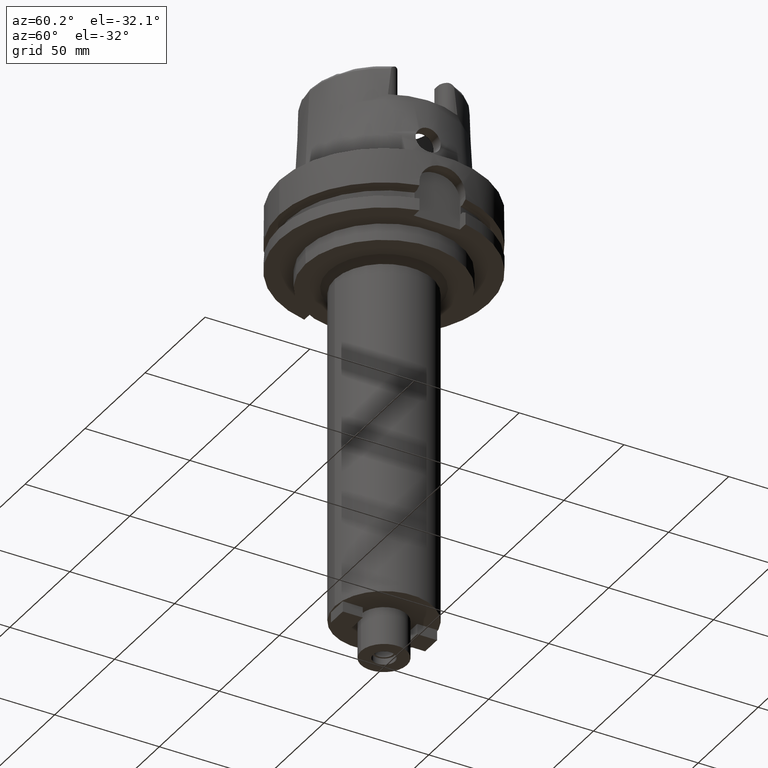
[diagram: clean part render]
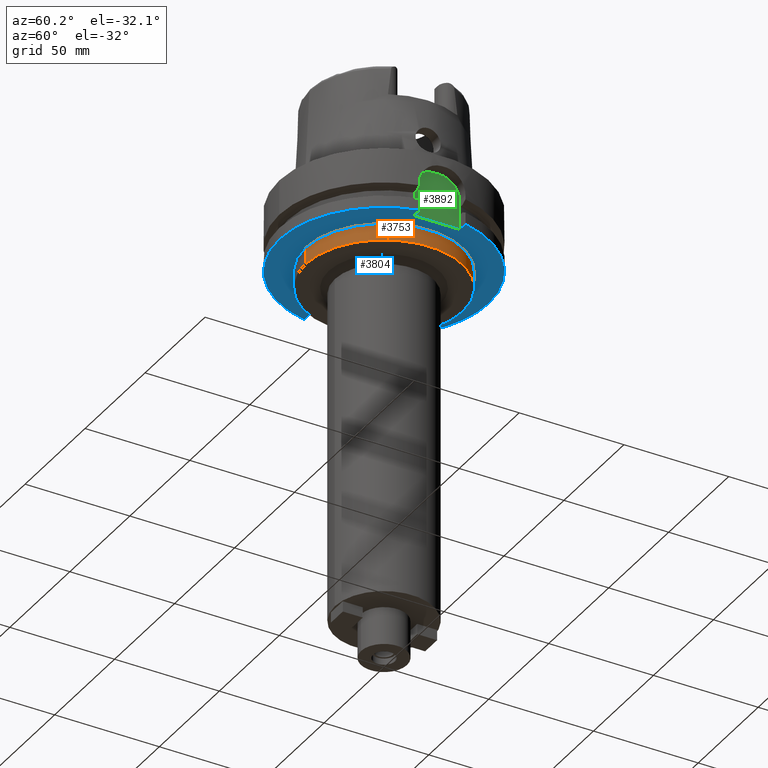
[diagram: same view with three faces highlighted in distinct colors, each labeled with its STEP entity id]
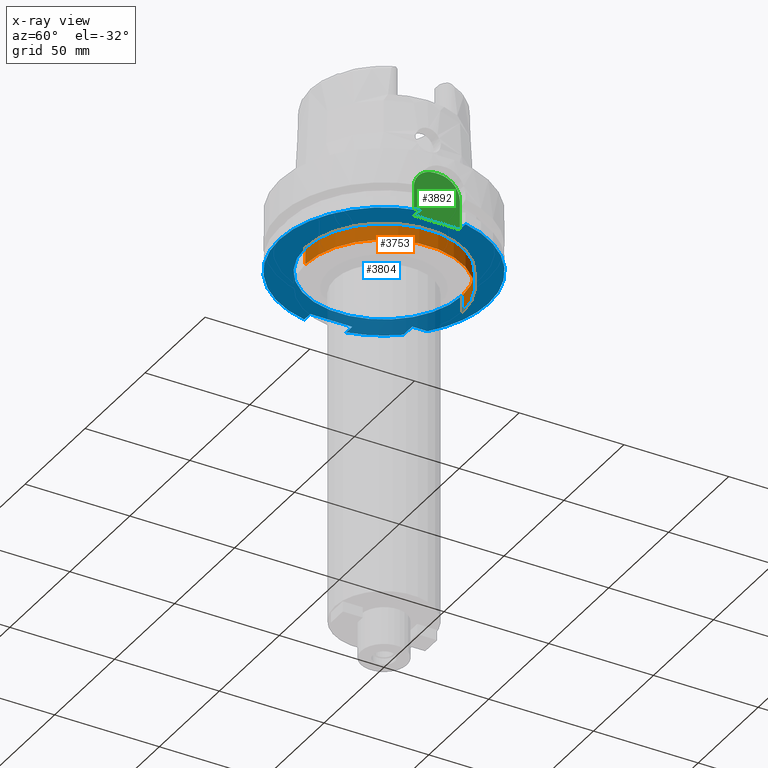
[diagram: x-ray of the same camera — body ghosted, the three highlighted faces saturated]
A machine part, auxiliary view with three faces highlighted in distinct colors.
The next image is the same camera in x-ray (body ghosted, the three faces saturated) — at least one of them is partly hidden behind the body in this view.
Their STEP definitions:

[orange] entity #3753 — the highlighted cylindrical surface (partial cylindrical patch) has radius 37.5 mm, axis along (0, 0, 1).
#1233=CARTESIAN_POINT('',(0.E0,0.E0,-3.7E1));
#1234=DIRECTION('',(0.E0,0.E0,1.E0));
#1235=DIRECTION('',(0.E0,-1.E0,0.E0));
#1236=AXIS2_PLACEMENT_3D('',#1233,#1234,#1235);
#1265=DIRECTION('',(0.E0,0.E0,-1.E0));
#1266=VECTOR('',#1265,8.E0);
#1267=CARTESIAN_POINT('',(0.E0,3.75E1,-2.9E1));
#1268=LINE('',#1267,#1266);
#1272=DIRECTION('',(0.E0,0.E0,-1.E0));
#1273=VECTOR('',#1272,8.E0);
#1274=CARTESIAN_POINT('',(0.E0,-3.75E1,-2.9E1));
#1275=LINE('',#1274,#1273);
#1348=CARTESIAN_POINT('',(0.E0,0.E0,-2.9E1));
#1349=DIRECTION('',(0.E0,0.E0,-1.E0));
#1350=DIRECTION('',(0.E0,1.E0,0.E0));
#1351=AXIS2_PLACEMENT_3D('',#1348,#1349,#1350);
#2636=CARTESIAN_POINT('',(0.E0,-3.75E1,-3.7E1));
#2637=CARTESIAN_POINT('',(0.E0,3.75E1,-3.7E1));
#2638=VERTEX_POINT('',#2636);
#2639=VERTEX_POINT('',#2637);
#2640=CARTESIAN_POINT('',(0.E0,3.75E1,-2.9E1));
#2641=VERTEX_POINT('',#2640);
#2642=CARTESIAN_POINT('',(0.E0,-3.75E1,-2.9E1));
#2643=VERTEX_POINT('',#2642);
#3739=CARTESIAN_POINT('',(0.E0,0.E0,-2.314E2));
#3740=DIRECTION('',(0.E0,0.E0,1.E0));
#3741=DIRECTION('',(0.E0,1.E0,0.E0));
#3742=AXIS2_PLACEMENT_3D('',#3739,#3740,#3741);
#3743=CYLINDRICAL_SURFACE('',#3742,3.75E1);
#3745=ORIENTED_EDGE('',*,*,#3744,.T.);
#3746=ORIENTED_EDGE('',*,*,#3728,.F.);
#3748=ORIENTED_EDGE('',*,*,#3747,.F.);
#3750=ORIENTED_EDGE('',*,*,#3749,.F.);
#3751=EDGE_LOOP('',(#3745,#3746,#3748,#3750));
#3752=FACE_OUTER_BOUND('',#3751,.F.);
#1237=CIRCLE('',#1236,3.75E1);
#1352=CIRCLE('',#1351,3.75E1);
#3728=EDGE_CURVE('',#2638,#2639,#1237,.T.);
#3744=EDGE_CURVE('',#2641,#2639,#1268,.T.);
#3747=EDGE_CURVE('',#2643,#2638,#1275,.T.);
#3749=EDGE_CURVE('',#2641,#2643,#1352,.T.);
#3753=ADVANCED_FACE('',(#3752),#3743,.T.);

[blue] entity #3804 — the highlighted planar face has unit normal (0, 0, 1).
#1279=DIRECTION('',(-1.E0,-4.798503851106E-14,0.E0));
#1280=VECTOR('',#1279,7.329756630709E0);
#1281=CARTESIAN_POINT('',(-3.15E1,3.15E1,-2.9E1));
#1282=LINE('',#1281,#1280);
#1286=CARTESIAN_POINT('',(0.E0,0.E0,-2.9E1));
#1287=DIRECTION('',(0.E0,0.E0,1.E0));
#1288=DIRECTION('',(-7.765951326142E-1,6.3E-1,0.E0));
#1289=AXIS2_PLACEMENT_3D('',#1286,#1287,#1288);
#1294=DIRECTION('',(-1.E0,-4.627973610177E-14,0.E0));
#1295=VECTOR('',#1294,4.989794855662E0);
#1296=CARTESIAN_POINT('',(-4.4E1,-1.E1,-2.9E1));
#1297=LINE('',#1296,#1295);
#1301=CARTESIAN_POINT('',(0.E0,0.E0,-2.9E1));
#1302=DIRECTION('',(0.E0,0.E0,1.E0));
#1303=DIRECTION('',(-9.797958971133E-1,-2.E-1,0.E0));
#1304=AXIS2_PLACEMENT_3D('',#1301,#1302,#1303);
#1309=CARTESIAN_POINT('',(0.E0,0.E0,-2.9E1));
#1310=DIRECTION('',(0.E0,0.E0,1.E0));
#1311=DIRECTION('',(0.E0,-1.E0,0.E0));
#1312=AXIS2_PLACEMENT_3D('',#1309,#1310,#1311);
#1317=DIRECTION('',(1.E0,-1.785659532940E-14,0.E0));
#1318=VECTOR('',#1317,4.774993593029E0);
#1319=CARTESIAN_POINT('',(4.4E1,1.1E1,-2.9E1));
#1320=LINE('',#1319,#1318);
#1324=CARTESIAN_POINT('',(0.E0,0.E0,-2.9E1));
#1325=DIRECTION('',(0.E0,0.E0,1.E0));
#1326=DIRECTION('',(9.754998718606E-1,2.2E-1,0.E0));
#1327=AXIS2_PLACEMENT_3D('',#1324,#1325,#1326);
#1332=CARTESIAN_POINT('',(0.E0,0.E0,-2.9E1));
#1333=DIRECTION('',(0.E0,0.E0,1.E0));
#1334=DIRECTION('',(0.E0,1.E0,0.E0));
#1335=AXIS2_PLACEMENT_3D('',#1332,#1333,#1334);
#1340=CARTESIAN_POINT('',(0.E0,0.E0,-2.9E1));
#1341=DIRECTION('',(0.E0,0.E0,-1.E0));
#1342=DIRECTION('',(0.E0,-1.E0,0.E0));
#1343=AXIS2_PLACEMENT_3D('',#1340,#1341,#1342);
#1348=CARTESIAN_POINT('',(0.E0,0.E0,-2.9E1));
#1349=DIRECTION('',(0.E0,0.E0,-1.E0));
#1350=DIRECTION('',(0.E0,1.E0,0.E0));
#1351=AXIS2_PLACEMENT_3D('',#1348,#1349,#1350);
#1356=DIRECTION('',(4.798503851106E-14,1.E0,0.E0));
#1357=VECTOR('',#1356,7.329756630709E0);
#1358=CARTESIAN_POINT('',(-3.15E1,3.15E1,-2.9E1));
#1359=LINE('',#1358,#1357);
#1409=DIRECTION('',(0.E0,-1.E0,0.E0));
#1410=VECTOR('',#1409,2.2E1);
#1411=CARTESIAN_POINT('',(4.4E1,1.1E1,-2.9E1));
#1412=LINE('',#1411,#1410);
#1453=DIRECTION('',(1.E0,1.711257052401E-14,0.E0));
#1454=VECTOR('',#1453,4.774993593029E0);
#1455=CARTESIAN_POINT('',(4.4E1,-1.1E1,-2.9E1));
#1456=LINE('',#1455,#1454);
#1495=DIRECTION('',(0.E0,1.E0,0.E0));
#1496=VECTOR('',#1495,2.E1);
#1497=CARTESIAN_POINT('',(-4.4E1,-1.E1,-2.9E1));
#1498=LINE('',#1497,#1496);
#1518=DIRECTION('',(-1.E0,4.627973610177E-14,0.E0));
#1519=VECTOR('',#1518,4.989794855662E0);
#1520=CARTESIAN_POINT('',(-4.4E1,1.E1,-2.9E1));
#1521=LINE('',#1520,#1519);
#2640=CARTESIAN_POINT('',(0.E0,3.75E1,-2.9E1));
#2641=VERTEX_POINT('',#2640);
#2642=CARTESIAN_POINT('',(0.E0,-3.75E1,-2.9E1));
#2643=VERTEX_POINT('',#2642);
#2644=CARTESIAN_POINT('',(-3.15E1,3.15E1,-2.9E1));
#2645=CARTESIAN_POINT('',(-3.15E1,3.882975663071E1,-2.9E1));
#2646=VERTEX_POINT('',#2644);
#2647=VERTEX_POINT('',#2645);
#2648=CARTESIAN_POINT('',(-3.882975663071E1,3.15E1,-2.9E1));
#2649=VERTEX_POINT('',#2648);
#2650=CARTESIAN_POINT('',(-4.898979485566E1,1.E1,-2.9E1));
#2651=VERTEX_POINT('',#2650);
#2652=CARTESIAN_POINT('',(-4.4E1,1.E1,-2.9E1));
#2653=VERTEX_POINT('',#2652);
#2654=CARTESIAN_POINT('',(-4.4E1,-1.E1,-2.9E1));
#2655=VERTEX_POINT('',#2654);
#2656=CARTESIAN_POINT('',(-4.898979485566E1,-1.E1,-2.9E1));
#2657=VERTEX_POINT('',#2656);
#2658=CARTESIAN_POINT('',(-6.821749291191E-14,-5.E1,-2.9E1));
#2659=CARTESIAN_POINT('',(4.877499359303E1,-1.1E1,-2.9E1));
#2660=VERTEX_POINT('',#2658);
#2661=VERTEX_POINT('',#2659);
#2662=CARTESIAN_POINT('',(4.4E1,-1.1E1,-2.9E1));
#2663=VERTEX_POINT('',#2662);
#2664=CARTESIAN_POINT('',(4.4E1,1.1E1,-2.9E1));
#2665=VERTEX_POINT('',#2664);
#2666=CARTESIAN_POINT('',(4.877499359303E1,1.1E1,-2.9E1));
#2667=VERTEX_POINT('',#2666);
#2668=CARTESIAN_POINT('',(-6.019535474874E-14,5.E1,-2.9E1));
#2669=VERTEX_POINT('',#2668);
#3767=CARTESIAN_POINT('',(0.E0,0.E0,-2.9E1));
#3768=DIRECTION('',(0.E0,0.E0,1.E0));
#3769=DIRECTION('',(0.E0,1.E0,0.E0));
#3770=AXIS2_PLACEMENT_3D('',#3767,#3768,#3769);
#3771=PLANE('',#3770);
#3773=ORIENTED_EDGE('',*,*,#3772,.F.);
#3775=ORIENTED_EDGE('',*,*,#3774,.T.);
#3777=ORIENTED_EDGE('',*,*,#3776,.T.);
#3779=ORIENTED_EDGE('',*,*,#3778,.F.);
#3781=ORIENTED_EDGE('',*,*,#3780,.F.);
#3783=ORIENTED_EDGE('',*,*,#3782,.T.);
#3785=ORIENTED_EDGE('',*,*,#3784,.T.);
#3787=ORIENTED_EDGE('',*,*,#3786,.T.);
#3789=ORIENTED_EDGE('',*,*,#3788,.F.);
#3791=ORIENTED_EDGE('',*,*,#3790,.F.);
#3793=ORIENTED_EDGE('',*,*,#3792,.T.);
#3795=ORIENTED_EDGE('',*,*,#3794,.T.);
#3797=ORIENTED_EDGE('',*,*,#3796,.T.);
#3798=EDGE_LOOP('',(#3773,#3775,#3777,#3779,#3781,#3783,#3785,#3787,#3789,#3791,
#3793,#3795,#3797));
#3799=FACE_OUTER_BOUND('',#3798,.F.);
#3800=ORIENTED_EDGE('',*,*,#3760,.T.);
#3801=ORIENTED_EDGE('',*,*,#3749,.T.);
#3802=EDGE_LOOP('',(#3800,#3801));
#3803=FACE_BOUND('',#3802,.F.);
#1290=CIRCLE('',#1289,5.E1);
#1305=CIRCLE('',#1304,5.E1);
#1313=CIRCLE('',#1312,5.E1);
#1328=CIRCLE('',#1327,5.E1);
#1336=CIRCLE('',#1335,5.E1);
#1344=CIRCLE('',#1343,3.75E1);
#1352=CIRCLE('',#1351,3.75E1);
#3749=EDGE_CURVE('',#2641,#2643,#1352,.T.);
#3760=EDGE_CURVE('',#2643,#2641,#1344,.T.);
#3772=EDGE_CURVE('',#2646,#2647,#1359,.T.);
#3774=EDGE_CURVE('',#2646,#2649,#1282,.T.);
#3776=EDGE_CURVE('',#2649,#2651,#1290,.T.);
#3778=EDGE_CURVE('',#2653,#2651,#1521,.T.);
#3780=EDGE_CURVE('',#2655,#2653,#1498,.T.);
#3782=EDGE_CURVE('',#2655,#2657,#1297,.T.);
#3784=EDGE_CURVE('',#2657,#2660,#1305,.T.);
#3786=EDGE_CURVE('',#2660,#2661,#1313,.T.);
#3788=EDGE_CURVE('',#2663,#2661,#1456,.T.);
#3790=EDGE_CURVE('',#2665,#2663,#1412,.T.);
#3792=EDGE_CURVE('',#2665,#2667,#1320,.T.);
#3794=EDGE_CURVE('',#2667,#2669,#1328,.T.);
#3796=EDGE_CURVE('',#2669,#2647,#1336,.T.);
#3804=ADVANCED_FACE('',(#3799,#3803),#3771,.F.);

[green] entity #3892 — the highlighted planar face has unit normal (1, 0, 0).
#1409=DIRECTION('',(0.E0,-1.E0,0.E0));
#1410=VECTOR('',#1409,2.2E1);
#1411=CARTESIAN_POINT('',(4.4E1,1.1E1,-2.9E1));
#1412=LINE('',#1411,#1410);
#1416=DIRECTION('',(0.E0,0.E0,1.E0));
#1417=VECTOR('',#1416,1.4E1);
#1418=CARTESIAN_POINT('',(4.4E1,-1.1E1,-2.9E1));
#1419=LINE('',#1418,#1417);
#1423=CARTESIAN_POINT('',(4.4E1,-1.E0,-1.5E1));
#1424=DIRECTION('',(-1.E0,0.E0,0.E0));
#1425=DIRECTION('',(0.E0,-1.E0,0.E0));
#1426=AXIS2_PLACEMENT_3D('',#1423,#1424,#1425);
#1431=DIRECTION('',(0.E0,1.E0,0.E0));
#1432=VECTOR('',#1431,2.E0);
#1433=CARTESIAN_POINT('',(4.4E1,-1.E0,-5.E0));
#1434=LINE('',#1433,#1432);
#1438=CARTESIAN_POINT('',(4.4E1,1.E0,-1.5E1));
#1439=DIRECTION('',(-1.E0,0.E0,0.E0));
#1440=DIRECTION('',(0.E0,0.E0,1.E0));
#1441=AXIS2_PLACEMENT_3D('',#1438,#1439,#1440);
#1446=DIRECTION('',(0.E0,0.E0,-1.E0));
#1447=VECTOR('',#1446,1.4E1);
#1448=CARTESIAN_POINT('',(4.4E1,1.1E1,-1.5E1));
#1449=LINE('',#1448,#1447);
#2662=CARTESIAN_POINT('',(4.4E1,-1.1E1,-2.9E1));
#2663=VERTEX_POINT('',#2662);
#2664=CARTESIAN_POINT('',(4.4E1,1.1E1,-2.9E1));
#2665=VERTEX_POINT('',#2664);
#2784=CARTESIAN_POINT('',(4.4E1,1.E0,-5.E0));
#2785=VERTEX_POINT('',#2784);
#2786=CARTESIAN_POINT('',(4.4E1,-1.E0,-5.E0));
#2787=VERTEX_POINT('',#2786);
#2788=CARTESIAN_POINT('',(4.4E1,1.1E1,-1.5E1));
#2789=VERTEX_POINT('',#2788);
#2790=CARTESIAN_POINT('',(4.4E1,-1.1E1,-1.5E1));
#2791=VERTEX_POINT('',#2790);
#3875=CARTESIAN_POINT('',(4.4E1,0.E0,0.E0));
#3876=DIRECTION('',(1.E0,0.E0,0.E0));
#3877=DIRECTION('',(0.E0,0.E0,-1.E0));
#3878=AXIS2_PLACEMENT_3D('',#3875,#3876,#3877);
#3879=PLANE('',#3878);
#3880=ORIENTED_EDGE('',*,*,#3790,.T.);
#3882=ORIENTED_EDGE('',*,*,#3881,.T.);
#3884=ORIENTED_EDGE('',*,*,#3883,.T.);
#3886=ORIENTED_EDGE('',*,*,#3885,.T.);
#3888=ORIENTED_EDGE('',*,*,#3887,.T.);
#3889=ORIENTED_EDGE('',*,*,#3855,.T.);
#3890=EDGE_LOOP('',(#3880,#3882,#3884,#3886,#3888,#3889));
#3891=FACE_OUTER_BOUND('',#3890,.F.);
#1427=CIRCLE('',#1426,1.E1);
#1442=CIRCLE('',#1441,1.E1);
#3790=EDGE_CURVE('',#2665,#2663,#1412,.T.);
#3855=EDGE_CURVE('',#2789,#2665,#1449,.T.);
#3881=EDGE_CURVE('',#2663,#2791,#1419,.T.);
#3883=EDGE_CURVE('',#2791,#2787,#1427,.T.);
#3885=EDGE_CURVE('',#2787,#2785,#1434,.T.);
#3887=EDGE_CURVE('',#2785,#2789,#1442,.T.);
#3892=ADVANCED_FACE('',(#3891),#3879,.T.);